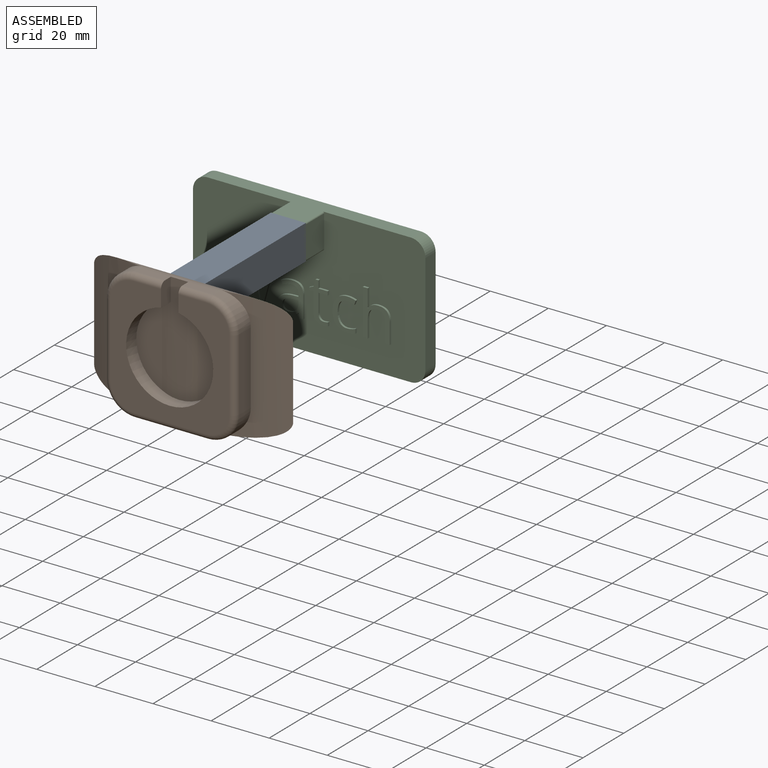
[diagram: assembled view]
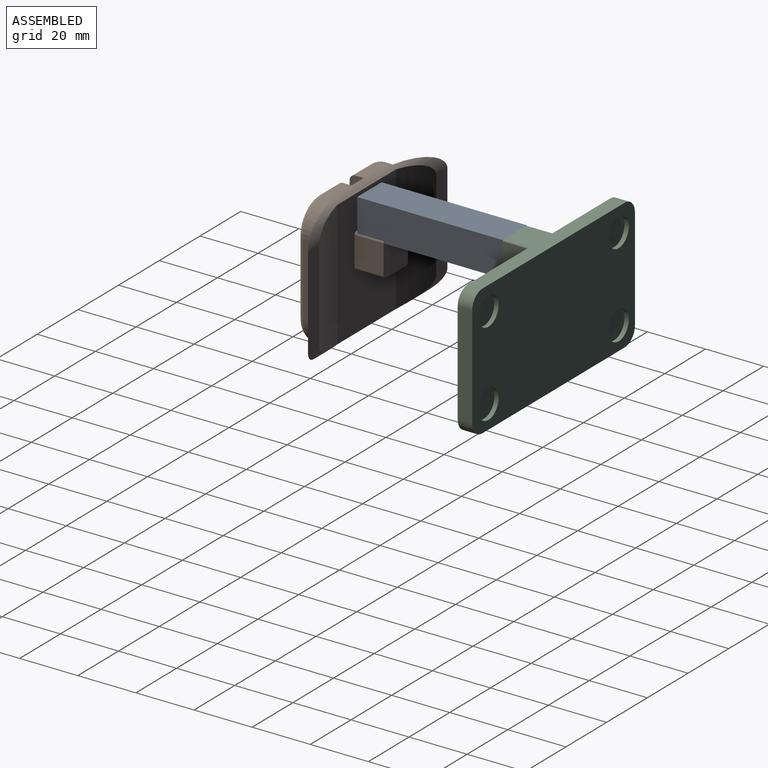
[diagram: assembled view, second angle]
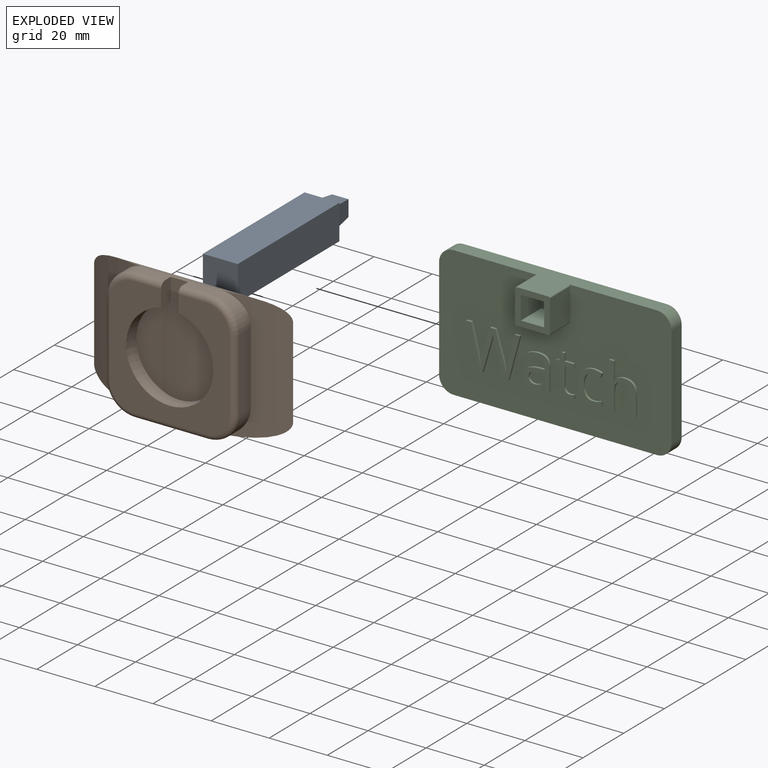
[diagram: exploded view]
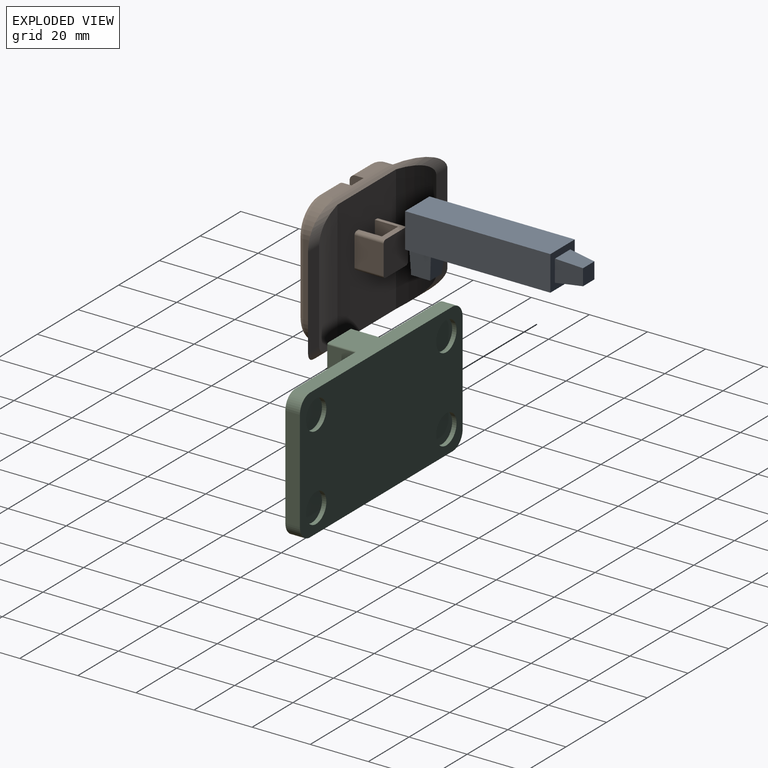
[diagram: exploded view, second angle]
ASSEMBLY  parts=3 mates=2
PART A: 15 faces, bbox 12x59x21 mm
  f0: plane 50x12mm, normal (0,0,1), area 543.8mm2, adj f1,f3,f4,f5,f11,f12,f13
  f1: plane 50x12mm, normal (-1,0,0), area 600mm2, adj f0,f2,f4,f5
  f2: plane 50x12mm, normal (0,0,-1), area 600mm2, adj f1,f3,f4,f5
  f3: plane 50x12mm, normal (1,0,0), area 600mm2, adj f0,f2,f4,f5
  f4: plane 12x12mm, normal (0,-1,0), area 87.8mm2, adj f0,f1,f2,f3,f6,f7,f8,f9
  f5: plane 21x12mm, normal (0,1,0), area 203mm2, adj f0,f1,f2,f3,f11,f12,f14
  f6: plane 9x7.5mm, normal (-0.99,-0.1,0), area 59.3mm2, adj f4,f7,f9,f10
  f7: plane 9x7.5mm, normal (0,-0.1,-0.99), area 59.3mm2, adj f4,f6,f8,f10
  f8: plane 9x7.5mm, normal (0.99,-0.1,0), area 59.3mm2, adj f4,f7,f9,f10
  f9: plane 9x7.5mm, normal (0,-0.1,0.99), area 59.3mm2, adj f4,f6,f8,f10
  f10: plane 5.61x5.61mm, normal (0,-1,0), area 31.5mm2, adj f6,f7,f8,f9
  f11: plane 9x7.5mm, normal (0.99,0,0.1), area 63.6mm2, adj f0,f5,f13,f14
  f12: plane 9x7.5mm, normal (-0.99,0,0.1), area 63.6mm2, adj f0,f5,f13,f14
  f13: plane 9x7.5mm, normal (0,-0.99,0.1), area 59.3mm2, adj f0,f11,f12,f14
  f14: plane 6.55x5.61mm, normal (0,0,1), area 36.8mm2, adj f5,f11,f12,f13
PART B: 47 faces, bbox 68.5x18x46.6 mm
  f0: plane 9.5x2.77mm, normal (0,0,1), area 26.3mm2, adj f14,f18,f37,f46
  f1: plane 43.42x28.76mm, normal (0,1,0), area 1185.7mm2, adj f2,f3,f23,f24,f25,f26,f28,f30
  f2: cylinder r=85.5mm len=43.42mm, axis (0,0,-1), area 601mm2, adj f1,f22,f36,f37
  f3: cylinder r=85.5mm len=43.42mm, axis (0,0,-1), area 601mm2, adj f1,f21,f36,f37
  f4: cylinder r=87.5mm len=44.82mm, axis (0,0,-1), area 541.9mm2, adj f10,f17,f18,f22,f36,f37
  f5: cylinder r=87.5mm len=44.82mm, axis (0,0,-1), area 541.9mm2, adj f8,f16,f19,f21,f36,f37
  f6: plane 27.34x8.82mm, normal (0,-1,0), area 173.5mm2, adj f12,f20
  f7: plane 9.5x2.77mm, normal (0,0,1), area 26.3mm2, adj f15,f19,f37,f38
  f8: plane 25x5.72mm, normal (-1,0,0), area 143.1mm2, adj f5,f16,f19,f40
  f9: plane 25x2.77mm, normal (0,0,-1), area 69.2mm2, adj f16,f17,f36,f42
  f10: plane 25x5.72mm, normal (1,0,0), area 143.1mm2, adj f4,f17,f18,f44
  f11: plane 41x41mm, normal (0,-1,0), area 885.6mm2, adj f12,f14,f15,f38,f39,f40,f41,f42
  f12: cylinder r=15mm len=30mm, axis (0,-1,0), area 438.6mm2, adj f6,f11,f13,f14,f15,f20
  f13: plane 27.34x8.82mm, normal (0,-1,0), area 173.5mm2, adj f12,f20
  f14: plane 7.8x4.83mm, normal (-1,0,0), area 36.9mm2, adj f0,f11,f12,f20,f37,f46
  f15: plane 7.8x4.83mm, normal (1,0,0), area 36.9mm2, adj f7,f11,f12,f20,f37,f38
  f16: cylinder r=10mm len=10mm, axis (0,1,0), area 76.3mm2, adj f5,f8,f9,f36,f41
  f17: cylinder r=10mm len=10mm, axis (0,-1,0), area 76.3mm2, adj f4,f9,f10,f36,f43
  f18: cylinder r=10mm len=10mm, axis (0,1,0), area 76.3mm2, adj f0,f4,f10,f37,f45
  f19: cylinder r=10mm len=10mm, axis (0,-1,0), area 76.3mm2, adj f5,f7,f8,f37,f39
  f20: cylinder r=87.5mm len=37.5mm, axis (0,0,-1), area 405.7mm2, adj f6,f12,f13,f14,f15,f37
  f21: plane 31x5.49mm, normal (0,1,0), area 170.2mm2, adj f3,f5,f36,f37
  f22: plane 31x5.49mm, normal (0,1,0), area 170.2mm2, adj f2,f4,f36,f37
  f23: plane 10x10mm, normal (0,0,1), area 36mm2, adj f1,f27,f28,f29,f30,f32,f35
  f24: plane 10x10mm, normal (1,0,0), area 100mm2, adj f1,f27,f32,f33
  f25: plane 10x10mm, normal (0,0,-1), area 100mm2, adj f1,f27,f33,f34
  f26: plane 10x10mm, normal (-1,0,0), area 100mm2, adj f1,f27,f34,f35
  f27: plane 12x12mm, normal (0,1,0), area 143.1mm2, adj f23,f24,f25,f26,f32,f33,f34,f35
  f28: plane 10x8mm, normal (-1,0,0), area 80mm2, adj f1,f23,f29,f31
  f29: plane 10x8mm, normal (0,-1,0), area 80mm2, adj f23,f28,f30,f31
  f30: plane 10x8mm, normal (1,0,0), area 80mm2, adj f1,f23,f29,f31
  f31: plane 8x8mm, normal (0,0,1), area 64mm2, adj f1,f28,f29,f30
  f32: cylinder r=1mm len=10mm, axis (0,1,0), area 15.7mm2, adj f1,f23,f24,f27
  f33: cylinder r=1mm len=10mm, axis (0,-1,0), area 15.7mm2, adj f1,f24,f25,f27
  f34: cylinder r=1mm len=10mm, axis (0,1,0), area 15.7mm2, adj f1,f25,f26,f27
  f35: cylinder r=1mm len=10mm, axis (0,-1,0), area 15.7mm2, adj f1,f23,f26,f27
  f36: cylinder r=7mm len=68.52mm, axis (-1,0,0), area 213mm2, adj f1,f2,f3,f4,f5,f9,f16,f17
  f37: cylinder r=7mm len=68.52mm, axis (1,0,0), area 212.8mm2, adj f0,f1,f2,f3,f4,f5,f7,f14
  f38: cylinder r=2mm len=9.5mm, axis (1,0,0), area 29.8mm2, adj f7,f11,f15,f39
  f39: torus R=8mm, axis (0,-1,0), area 45.8mm2, adj f11,f19,f38,f40
  f40: cylinder r=2mm len=25mm, axis (0,0,1), area 78.5mm2, adj f8,f11,f39,f41
  f41: torus R=8mm, axis (0,-1,0), area 45.8mm2, adj f11,f16,f40,f42
  f42: cylinder r=2mm len=25mm, axis (-1,0,0), area 78.5mm2, adj f9,f11,f41,f43
  f43: torus R=8mm, axis (0,-1,0), area 45.8mm2, adj f11,f17,f42,f44
  f44: cylinder r=2mm len=25mm, axis (0,0,-1), area 78.5mm2, adj f10,f11,f43,f45
  f45: torus R=8mm, axis (0,-1,0), area 45.8mm2, adj f11,f18,f44,f46
  f46: cylinder r=2mm len=9.5mm, axis (1,0,0), area 29.8mm2, adj f0,f11,f14,f45
PART C: 136 faces, bbox 80x15x45 mm
  f0: plane 80x45mm, normal (0,-1,0), area 3160.1mm2, adj f1,f2,f3,f4,f6,f7,f8,f9
  f1: plane 35x5mm, normal (-1,0,0), area 175mm2, adj f0,f5,f6,f9
  f2: plane 70x5mm, normal (0,0,-1), area 350mm2, adj f0,f5,f6,f7
  f3: plane 35x5mm, normal (1,0,0), area 175mm2, adj f0,f5,f7,f8
  f4: plane 70x15mm, normal (0,0,1), area 460mm2, adj f0,f5,f8,f9,f13,f19,f20
  f5: plane 80x45mm, normal (0,1,0), area 3264.4mm2, adj f1,f2,f3,f4,f6,f7,f8,f9
  f6: cylinder r=5mm len=5mm, axis (0,1,0), area 39.3mm2, adj f0,f1,f2,f5
  f7: cylinder r=5mm len=5mm, axis (0,-1,0), area 39.3mm2, adj f0,f2,f3,f5
  f8: cylinder r=5mm len=5mm, axis (0,1,0), area 39.3mm2, adj f0,f3,f4,f5
  f9: cylinder r=5mm len=5mm, axis (0,-1,0), area 39.3mm2, adj f0,f1,f4,f5
  f10: plane 11x10mm, normal (1,0,0), area 110mm2, adj f0,f13,f19,f22
  f11: plane 11x10mm, normal (-1,0,0), area 110mm2, adj f0,f13,f20,f21
  f12: plane 11x10mm, normal (0,0,-1), area 110mm2, adj f0,f13,f21,f22
  f13: plane 12x12mm, normal (0,-1,0), area 79.8mm2, adj f4,f10,f11,f12,f14,f15,f16,f17
  f14: plane 10x8mm, normal (1,0,0), area 80mm2, adj f13,f15,f17,f18
  f15: plane 10x8mm, normal (0,0,1), area 80mm2, adj f13,f14,f16,f18
  f16: plane 10x8mm, normal (-1,0,0), area 80mm2, adj f13,f15,f17,f18
  f17: plane 10x8mm, normal (0,0,-1), area 80mm2, adj f13,f14,f16,f18
  f18: plane 8x8mm, normal (0,-1,0), area 64mm2, adj f14,f15,f16,f17
  f19: cylinder r=0.5mm len=10mm, axis (0,1,0), area 7.9mm2, adj f0,f4,f10,f13
  f20: cylinder r=0.5mm len=10mm, axis (0,-1,0), area 7.9mm2, adj f0,f4,f11,f13
  f21: cylinder r=0.5mm len=10mm, axis (0,1,0), area 7.9mm2, adj f0,f11,f12,f13
  f22: cylinder r=0.5mm len=10mm, axis (0,-1,0), area 7.9mm2, adj f0,f10,f12,f13
  f23: plane 14.72x3.94mm, normal (0.97,0,-0.26), area 11.4mm2, adj f0,f24,f42,f43
  f24: plane 1.81x0.75mm, normal (0,0,1), area 1.4mm2, adj f0,f23,f25,f43
  f25: plane 9.08x2.32mm, normal (-0.97,0,0.25), area 7mm2, adj f0,f24,f26,f43
  f26: extruded ~3.48x0.75mm, area 2.7mm2, adj f0,f25,f27,f43
  f27: extruded ~3.53x0.82mm, area 2.7mm2, adj f0,f26,f28,f43
  f28: plane 9.03x2.77mm, normal (0.96,0,0.29), area 7.1mm2, adj f0,f27,f29,f43
  f29: plane 1.81x0.75mm, normal (0,0,1), area 1.4mm2, adj f0,f28,f30,f43
  f30: plane 8.95x2.64mm, normal (-0.96,0,0.28), area 7mm2, adj f0,f29,f31,f43
  f31: extruded ~3.61x0.81mm, area 2.8mm2, adj f0,f30,f32,f43
  f32: extruded ~3.46x0.75mm, area 2.7mm2, adj f0,f31,f33,f43
  f33: plane 9.09x2.33mm, normal (0.97,0,0.25), area 7mm2, adj f0,f32,f34,f43
  f34: plane 1.81x0.75mm, normal (0,0,1), area 1.4mm2, adj f0,f33,f35,f43
  f35: plane 14.72x3.92mm, normal (-0.97,0,-0.26), area 11.4mm2, adj f0,f34,f36,f43
  f36: plane 1.69x0.75mm, normal (0,0,-1), area 1.3mm2, adj f0,f35,f37,f43
  f37: plane 9.8x2.88mm, normal (0.96,0,-0.28), area 7.7mm2, adj f0,f36,f38,f43
  f38: extruded ~2.91x0.75mm, area 2.2mm2, adj f0,f37,f39,f43
  f39: extruded ~1.2x0.75mm, area 0.9mm2, adj f0,f38,f40,f43
  f40: extruded ~1.65x0.75mm, area 1.3mm2, adj f0,f39,f41,f43
  f41: plane 9.86x2.97mm, normal (-0.96,0,-0.29), area 7.7mm2, adj f0,f40,f42,f43
  f42: plane 1.69x0.75mm, normal (0,0,-1), area 1.3mm2, adj f0,f23,f41,f43
  f43: plane 18.54x14.72mm, normal (0,-1,0), area 92.5mm2, adj f23,f24,f25,f26,f27,f28,f29,f30
  f44: plane 1.24x0.75mm, normal (0,0,-1), area 0.9mm2, adj f0,f45,f70,f71
  f45: plane 7.53x0.75mm, normal (1,0,0), area 5.7mm2, adj f0,f44,f46,f71
  f46: extruded ~2.81x0.95mm, area 2.3mm2, adj f0,f45,f47,f71
  f47: extruded ~2.92x0.88mm, area 2.3mm2, adj f0,f46,f48,f71
  f48: extruded ~1.95x0.75mm, area 1.5mm2, adj f0,f47,f49,f71
  f49: extruded ~1.79x0.75mm, area 1.4mm2, adj f0,f48,f50,f71
  f50: plane 1.28x0.75mm, normal (-0.93,0,-0.37), area 1mm2, adj f0,f49,f51,f71
  f51: extruded ~3.12x0.84mm, area 2.4mm2, adj f0,f50,f52,f71
  f52: extruded ~1.79x0.75mm, area 1.5mm2, adj f0,f51,f53,f71
  f53: extruded ~1.92x0.75mm, area 1.5mm2, adj f0,f52,f54,f71
  f54: plane 0.75x0.69mm, normal (-1,0,0), area 0.5mm2, adj f0,f53,f55,f71
  f55: plane 1.87x0.75mm, normal (-0.03,0,1), area 1.4mm2, adj f0,f54,f56,f71
  f56: extruded ~5.35x3.5mm, area 5.4mm2, adj f0,f55,f57,f71
  f57: extruded ~2.41x0.93mm, area 2mm2, adj f0,f56,f58,f71
  f58: extruded ~2.57x0.85mm, area 2.1mm2, adj f0,f57,f59,f71
  f59: extruded ~2.05x0.75mm, area 1.6mm2, adj f0,f58,f60,f71
  f60: extruded ~1.65x1.41mm, area 1.6mm2, adj f0,f59,f61,f71
  f61: plane 0.75x0.08mm, normal (0,0,-1), area 0.1mm2, adj f0,f60,f70,f71
  f62: extruded ~1.53x0.75mm, area 1.2mm2, adj f63,f69,f71,f72
  f63: extruded ~1.38x0.75mm, area 1.2mm2, adj f62,f64,f71,f72
  f64: extruded ~1.71x0.88mm, area 1.5mm2, adj f63,f65,f71,f72
  f65: extruded ~2.87x0.75mm, area 2.2mm2, adj f64,f66,f71,f72
  f66: plane 1.67x0.75mm, normal (0.04,0,-1), area 1.3mm2, adj f65,f67,f71,f72
  f67: plane 1x0.75mm, normal (-1,0,0), area 0.7mm2, adj f66,f68,f71,f72
  f68: extruded ~2.4x0.89mm, area 2mm2, adj f67,f69,f71,f72
  f69: extruded ~2.45x0.86mm, area 2mm2, adj f62,f68,f71,f72
  f70: plane 1.57x0.75mm, normal (-0.98,0,-0.21), area 1.2mm2, adj f0,f44,f61,f71
  f71: plane 11.42x8.85mm, normal (0,-1,0), area 47.7mm2, adj f44,f45,f46,f47,f48,f49,f50,f51
  f72: plane 5.43x4.25mm, normal (0,-1,0), area 18.6mm2, adj f62,f63,f64,f65,f66,f67,f68,f69
  f73: extruded ~1.3x0.75mm, area 1.1mm2, adj f0,f74,f91,f92
  f74: extruded ~1.53x0.75mm, area 1.2mm2, adj f0,f73,f75,f92
  f75: plane 6.5x0.75mm, normal (1,0,0), area 4.9mm2, adj f0,f74,f76,f92
  f76: plane 3.2x0.75mm, normal (0,0,-1), area 2.4mm2, adj f0,f75,f77,f92
  f77: plane 1.3x0.75mm, normal (1,0,0), area 1mm2, adj f0,f76,f78,f92
  f78: plane 3.2x0.75mm, normal (0,0,1), area 2.4mm2, adj f0,f77,f79,f92
  f79: plane 2.56x0.75mm, normal (1,0,0), area 1.9mm2, adj f0,f78,f80,f92
  f80: plane 0.97x0.75mm, normal (0,0,1), area 0.7mm2, adj f0,f79,f81,f92
  f81: plane 2.36x0.75mm, normal (-0.96,0,0.29), area 1.8mm2, adj f0,f80,f82,f92
  f82: plane 1.58x0.75mm, normal (-0.4,0,0.92), area 1.3mm2, adj f0,f81,f83,f92
  f83: plane 0.81x0.75mm, normal (-1,0,0), area 0.6mm2, adj f0,f82,f84,f92
  f84: plane 1.58x0.75mm, normal (0,0,-1), area 1.2mm2, adj f0,f83,f85,f92
  f85: plane 6.57x0.75mm, normal (-1,0,0), area 4.9mm2, adj f0,f84,f86,f92
  f86: extruded ~3.37x3.2mm, area 4mm2, adj f0,f85,f87,f92
  f87: extruded ~0.95x0.75mm, area 0.7mm2, adj f0,f86,f88,f92
  f88: extruded ~0.8x0.75mm, area 0.6mm2, adj f0,f87,f89,f92
  f89: plane 1.28x0.75mm, normal (1,0,0), area 1mm2, adj f0,f88,f90,f92
  f90: extruded ~0.75x0.65mm, area 0.5mm2, adj f0,f89,f91,f92
  f91: extruded ~0.86x0.75mm, area 0.6mm2, adj f0,f73,f90,f92
  f92: plane 13.8x6.54mm, normal (0,-1,0), area 31.5mm2, adj f73,f74,f75,f76,f77,f78,f79,f80
  f93: extruded ~2.79x0.75mm, area 2.2mm2, adj f0,f94,f107,f108
  f94: plane 1.48x0.75mm, normal (1,0,0), area 1.1mm2, adj f0,f93,f95,f108
  f95: extruded ~2.83x0.75mm, area 2.2mm2, adj f0,f94,f96,f108
  f96: extruded ~2.43x1.09mm, area 2.1mm2, adj f0,f95,f97,f108
  f97: extruded ~3.12x0.82mm, area 2.5mm2, adj f0,f96,f98,f108
  f98: extruded ~4.29x3.36mm, area 4.7mm2, adj f0,f97,f99,f108
  f99: extruded ~1.16x0.75mm, area 0.9mm2, adj f0,f98,f100,f108
  f100: extruded ~1.21x0.75mm, area 0.9mm2, adj f0,f99,f101,f108
  f101: plane 1.42x0.75mm, normal (0.94,0,-0.34), area 1.1mm2, adj f0,f100,f102,f108
  f102: extruded ~1.25x0.75mm, area 1mm2, adj f0,f101,f103,f108
  f103: extruded ~1.59x0.75mm, area 1.2mm2, adj f0,f102,f104,f108
  f104: extruded ~3.8x1.51mm, area 3.2mm2, adj f0,f103,f105,f108
  f105: extruded ~4.28x1.34mm, area 3.4mm2, adj f0,f104,f106,f108
  f106: extruded ~4.18x1.32mm, area 3.4mm2, adj f0,f105,f107,f108
  f107: extruded ~3.71x1.48mm, area 3.1mm2, adj f0,f93,f106,f108
  f108: plane 11.44x7.98mm, normal (0,-1,0), area 32.3mm2, adj f93,f94,f95,f96,f97,f98,f99,f100
  f109: plane 1.67x0.75mm, normal (0,0,-1), area 1.3mm2, adj f0,f110,f126,f127
  f110: plane 7.2x0.75mm, normal (1,0,0), area 5.4mm2, adj f0,f109,f111,f127
  f111: extruded ~3.06x1.01mm, area 2.5mm2, adj f0,f110,f112,f127
  f112: extruded ~3.04x0.96mm, area 2.4mm2, adj f0,f111,f113,f127
  f113: extruded ~2.08x0.75mm, area 1.6mm2, adj f0,f112,f114,f127
  f114: extruded ~1.41x1.25mm, area 1.4mm2, adj f0,f113,f115,f127
  f115: plane 0.75x0.1mm, normal (0,0,1), area 0.1mm2, adj f0,f114,f116,f127
  f116: extruded ~1.42x0.75mm, area 1.1mm2, adj f0,f115,f117,f127
  f117: plane 4.74x0.75mm, normal (1,0,0), area 3.6mm2, adj f0,f116,f118,f127
  f118: plane 1.67x0.75mm, normal (0,0,1), area 1.3mm2, adj f0,f117,f119,f127
  f119: plane 15.67x0.75mm, normal (-1,0,0), area 11.8mm2, adj f0,f118,f120,f127
  f120: plane 1.67x0.75mm, normal (0,0,-1), area 1.3mm2, adj f0,f119,f121,f127
  f121: plane 5.77x0.75mm, normal (1,0,0), area 4.3mm2, adj f0,f120,f122,f127
  f122: extruded ~3.1x0.8mm, area 2.4mm2, adj f0,f121,f123,f127
  f123: extruded ~2.54x0.95mm, area 2.1mm2, adj f0,f122,f124,f127
  f124: extruded ~1.93x0.75mm, area 1.6mm2, adj f0,f123,f125,f127
  f125: extruded ~2.01x0.75mm, area 1.6mm2, adj f0,f124,f126,f127
  f126: plane 7.14x0.75mm, normal (-1,0,0), area 5.4mm2, adj f0,f109,f125,f127
  f127: plane 15.67x9.23mm, normal (0,-1,0), area 52mm2, adj f109,f110,f111,f112,f113,f114,f115,f116
  f128: cylinder r=5mm len=10mm, axis (0,1,0), area 47.1mm2, adj f5,f129
  f129: plane 10x10mm, normal (0,1,0), area 78.5mm2, adj f128
  f130: cylinder r=5mm len=10mm, axis (0,1,0), area 47.1mm2, adj f5,f131
  f131: plane 10x10mm, normal (0,1,0), area 78.5mm2, adj f130
  f132: cylinder r=5mm len=10mm, axis (0,1,0), area 47.1mm2, adj f5,f133
  f133: plane 10x10mm, normal (0,1,0), area 78.5mm2, adj f132
  f134: cylinder r=5mm len=10mm, axis (0,1,0), area 47.1mm2, adj f5,f135
  f135: plane 10x10mm, normal (0,1,0), area 78.5mm2, adj f134
PLACE A rot(axis=(1,0,0),180deg) t=(-85.66,-29.64,-31.49)mm
PLACE B t=(-85.41,-30.37,-46.49)mm
PLACE C t=(-84.81,34.36,-47.99)mm
MATE fastened B.f31 <-> A.f14  axis (0,0,1) through (-85.41,-26.37,-46.49)mm
MATE fastened A.f10 <-> C.f18  axis (0,1,0) through (-85.66,29.36,-31.49)mm
